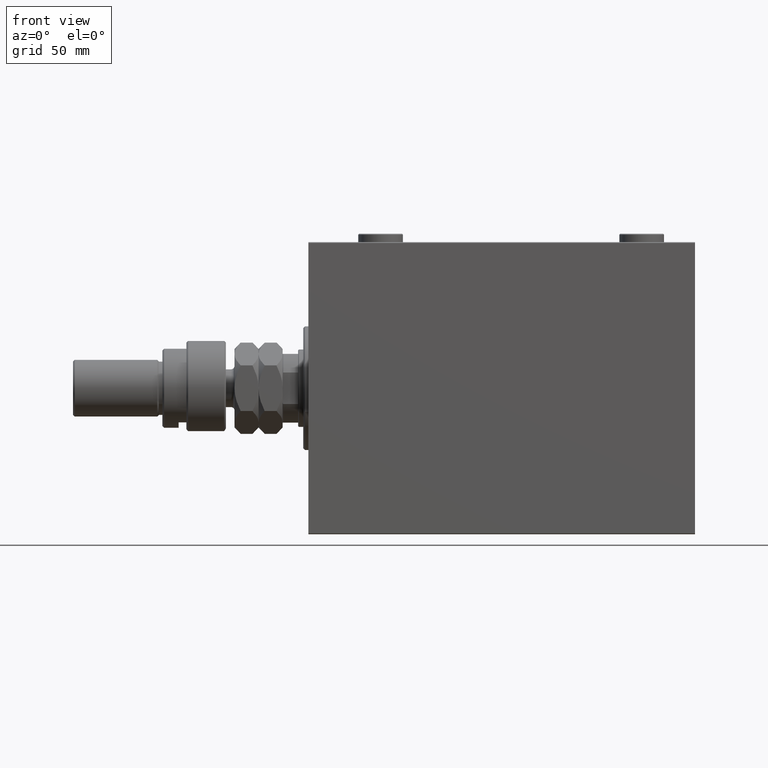
[diagram: clean part render]
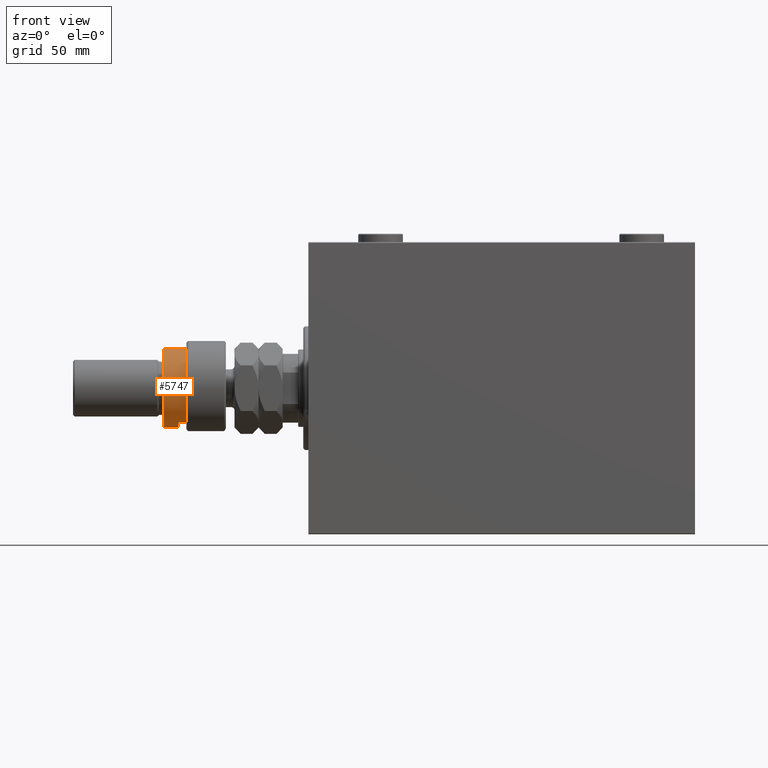
[diagram: same view with one face highlighted and labeled with its STEP entity id]
A machine part, front view. The second image highlights one B-rep face of the part: STEP entity #5747.
In plain terms, the highlighted cylindrical surface (partial cylindrical patch) has radius 23 mm, axis along (1, -0, -0).
Its self-contained STEP definition (entity closure, byte-faithful):
#780 = EDGE_CURVE ( 'NONE', #7724, #22457, #3370, .T. ) ;
#1161 = CARTESIAN_POINT ( 'NONE',  ( -23.00000000000000000, 0.000000000000000000, 36.00000000000002842 ) ) ;
#1721 = CARTESIAN_POINT ( 'NONE',  ( 23.00000000000000000, 2.816687638038912352E-15, 37.00000000000000000 ) ) ;
#2356 = FACE_OUTER_BOUND ( 'NONE', #20979, .T. ) ;
#2492 = ORIENTED_EDGE ( 'NONE', *, *, #43149, .T. ) ;
#2563 = CARTESIAN_POINT ( 'NONE',  ( 0.000000000000000000, 0.000000000000000000, 27.50000000000000000 ) ) ;
#3370 = CIRCLE ( 'NONE', #30638, 23.00000000000000000 ) ;
#4428 = VERTEX_POINT ( 'NONE', #39407 ) ;
#4826 = CARTESIAN_POINT ( 'NONE',  ( -23.00000000000000000, 0.000000000000000000, 37.00000000000000000 ) ) ;
#5142 = DIRECTION ( 'NONE',  ( -0.000000000000000000, -0.000000000000000000, -1.000000000000000000 ) ) ;
#5392 = CARTESIAN_POINT ( 'NONE',  ( 23.00000000000000000, 2.816687638038912352E-15, 36.00000000000002842 ) ) ;
#5464 = VECTOR ( 'NONE', #38974, 1000.000000000000000 ) ;
#5747 = ADVANCED_FACE ( 'NONE', ( #2356 ), #32111, .T. ) ;
#5975 = DIRECTION ( 'NONE',  ( -1.000000000000000000, 0.000000000000000000, 0.000000000000000000 ) ) ;
#7414 = VERTEX_POINT ( 'NONE', #34657 ) ;
#7724 = VERTEX_POINT ( 'NONE', #15833 ) ;
#7871 = VERTEX_POINT ( 'NONE', #1161 ) ;
#9209 = CARTESIAN_POINT ( 'NONE',  ( -19.91858428704208706, -11.50000000000000000, 37.00000000000000000 ) ) ;
#9904 = EDGE_CURVE ( 'NONE', #7871, #4428, #38262, .T. ) ;
#14778 = VERTEX_POINT ( 'NONE', #5392 ) ;
#15833 = CARTESIAN_POINT ( 'NONE',  ( -19.91858428704208706, -11.50000000000000000, 23.00000000000000000 ) ) ;
#17073 = LINE ( 'NONE', #1721, #21402 ) ;
#17432 = DIRECTION ( 'NONE',  ( 0.000000000000000000, 0.000000000000000000, -1.000000000000000000 ) ) ;
#18978 = CARTESIAN_POINT ( 'NONE',  ( 23.00000000000000000, 2.816687638038912352E-15, 23.00000000000000000 ) ) ;
#19704 = DIRECTION ( 'NONE',  ( -0.000000000000000000, -0.000000000000000000, -1.000000000000000000 ) ) ;
#20979 = EDGE_LOOP ( 'NONE', ( #40492, #2492, #25443, #31543, #34547, #37786 ) ) ;
#21270 = DIRECTION ( 'NONE',  ( 1.000000000000000000, 0.000000000000000000, 0.000000000000000000 ) ) ;
#21402 = VECTOR ( 'NONE', #5142, 1000.000000000000000 ) ;
#22457 = VERTEX_POINT ( 'NONE', #18978 ) ;
#25443 = ORIENTED_EDGE ( 'NONE', *, *, #9904, .T. ) ;
#26766 = AXIS2_PLACEMENT_3D ( 'NONE', #28922, #28690, #43828 ) ;
#27402 = AXIS2_PLACEMENT_3D ( 'NONE', #2563, #17432, #5975 ) ;
#28690 = DIRECTION ( 'NONE',  ( -0.000000000000000000, -0.000000000000000000, -1.000000000000000000 ) ) ;
#28922 = CARTESIAN_POINT ( 'NONE',  ( 0.000000000000000000, 0.000000000000000000, 37.00000000000000000 ) ) ;
#29064 = DIRECTION ( 'NONE',  ( 0.000000000000000000, 0.000000000000000000, -1.000000000000000000 ) ) ;
#30332 = EDGE_CURVE ( 'NONE', #7414, #7724, #42654, .T. ) ;
#30638 = AXIS2_PLACEMENT_3D ( 'NONE', #32520, #35949, #40091 ) ;
#31543 = ORIENTED_EDGE ( 'NONE', *, *, #34343, .F. ) ;
#32072 = CIRCLE ( 'NONE', #27402, 23.00000000000000000 ) ;
#32111 = CYLINDRICAL_SURFACE ( 'NONE', #26766, 23.00000000000000000 ) ;
#32520 = CARTESIAN_POINT ( 'NONE',  ( 0.000000000000000000, 0.000000000000000000, 23.00000000000000000 ) ) ;
#34343 = EDGE_CURVE ( 'NONE', #7414, #4428, #32072, .T. ) ;
#34547 = ORIENTED_EDGE ( 'NONE', *, *, #30332, .T. ) ;
#34657 = CARTESIAN_POINT ( 'NONE',  ( -19.91858428704208350, -11.49999999999999645, 27.50000000000000000 ) ) ;
#35949 = DIRECTION ( 'NONE',  ( 0.000000000000000000, 0.000000000000000000, 1.000000000000000000 ) ) ;
#37786 = ORIENTED_EDGE ( 'NONE', *, *, #780, .T. ) ;
#38262 = LINE ( 'NONE', #4826, #44062 ) ;
#38974 = DIRECTION ( 'NONE',  ( -0.000000000000000000, -0.000000000000000000, -1.000000000000000000 ) ) ;
#39407 = CARTESIAN_POINT ( 'NONE',  ( -23.00000000000000000, 0.000000000000000000, 27.50000000000000000 ) ) ;
#40091 = DIRECTION ( 'NONE',  ( 1.000000000000000000, 0.000000000000000000, 0.000000000000000000 ) ) ;
#40492 = ORIENTED_EDGE ( 'NONE', *, *, #43212, .F. ) ;
#40910 = CIRCLE ( 'NONE', #47160, 23.00000000000000000 ) ;
#42654 = LINE ( 'NONE', #9209, #5464 ) ;
#43149 = EDGE_CURVE ( 'NONE', #14778, #7871, #40910, .T. ) ;
#43212 = EDGE_CURVE ( 'NONE', #14778, #22457, #17073, .T. ) ;
#43828 = DIRECTION ( 'NONE',  ( -1.000000000000000000, 0.000000000000000000, 0.000000000000000000 ) ) ;
#44062 = VECTOR ( 'NONE', #19704, 1000.000000000000000 ) ;
#47160 = AXIS2_PLACEMENT_3D ( 'NONE', #47631, #29064, #21270 ) ;
#47631 = CARTESIAN_POINT ( 'NONE',  ( 0.000000000000000000, 0.000000000000000000, 36.00000000000002842 ) ) ;